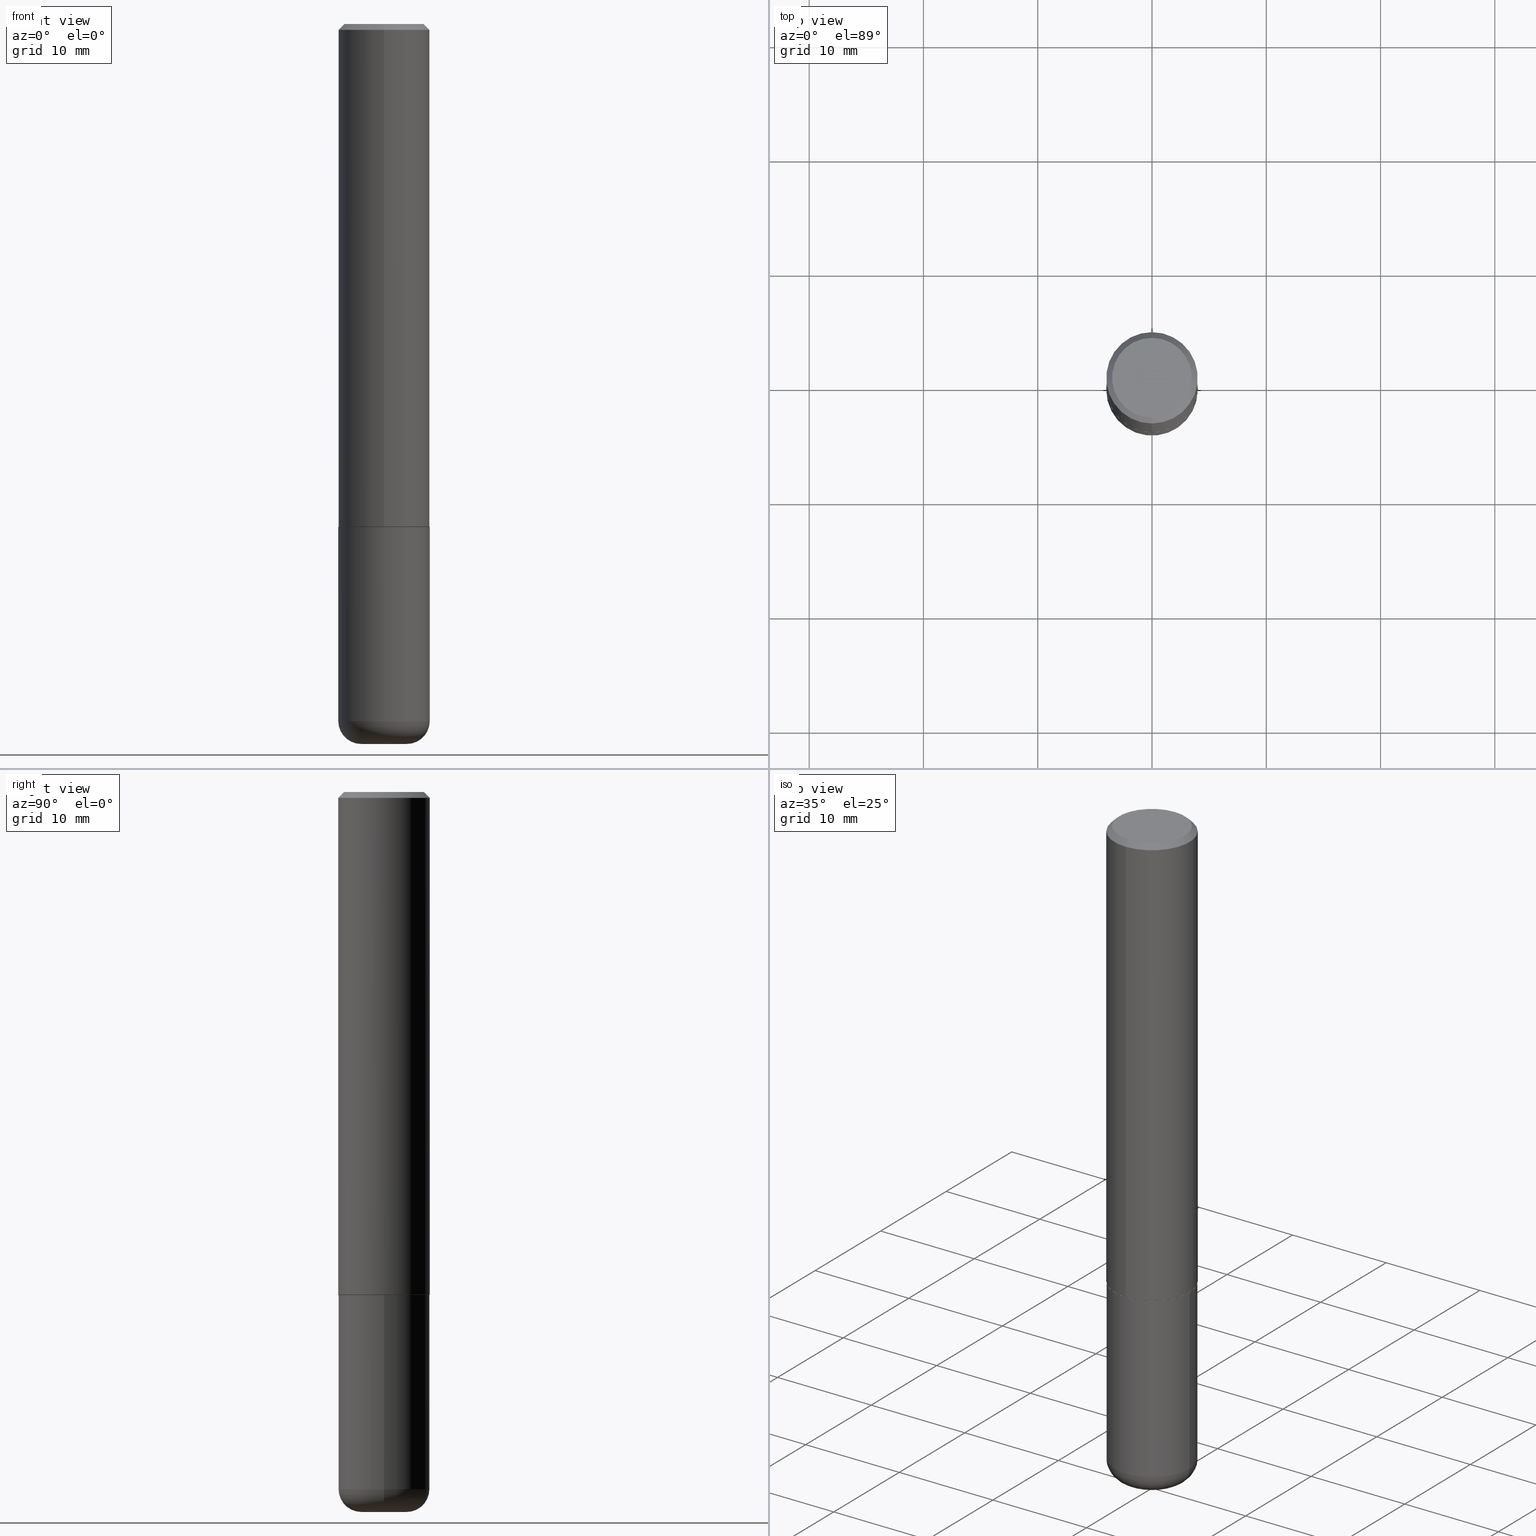
[diagram: canonical four-view strip — front | top / right | iso, engineering-drawing reading convention]
A machine part, canonical four-view strip (front | top / right | iso — engineering-drawing reading convention). The complete STEP part file that produces these views, byte-faithful:
ISO-10303-21;
HEADER;
FILE_DESCRIPTION (( 'STEP AP203' ),
    '1' );
FILE_NAME ('46887.STEP',
    '2024-03-05T05:59:41',
    ( '' ),
    ( '' ),
    'SwSTEP 2.0',
    'SolidWorks 2023',
    '' );
FILE_SCHEMA (( 'CONFIG_CONTROL_DESIGN' ));
ENDSEC;

DATA;
#1 = DIRECTION ( 'NONE',  ( 2.438088387897960049E-29, -3.491481338843145188E-15, -1.000000000000000000 ) ) ;
#2 = EDGE_LOOP ( 'NONE', ( #159, #112, #60, #26 ) ) ;
#3 = AXIS2_PLACEMENT_3D ( 'NONE', #50, #243, #301 ) ;
#4 = DIRECTION ( 'NONE',  ( 1.000000000000000000, -6.982962677686261977E-15, 0.000000000000000000 ) ) ;
#5 = DIRECTION ( 'NONE',  ( -2.446510153727324005E-29, 3.489990069892911860E-15, 1.000000000000000000 ) ) ;
#6 = EDGE_LOOP ( 'NONE', ( #38, #191, #130, #256 ) ) ;
#7 = DIRECTION ( 'NONE',  ( 5.024295867788404755E-15, 0.7071067811865981989, 0.7071067811864968355 ) ) ;
#8 = ORIENTED_EDGE ( 'NONE', *, *, #78, .F. ) ;
#9 = DATE_AND_TIME ( #326, #383 ) ;
#10 = LINE ( 'NONE', #398, #116 ) ;
#11 = CIRCLE ( 'NONE', #249, 0.1574999999999999456 ) ;
#12 = VERTEX_POINT ( 'NONE', #367 ) ;
#13 = CARTESIAN_POINT ( 'NONE',  ( 4.238089539301844751E-29, -6.045709798075491994E-15, -1.732300000000000173 ) ) ;
#14 = DIRECTION ( 'NONE',  ( 1.000000000000000000, -6.982962677686263555E-15, 4.883557194083111780E-29 ) ) ;
#15 = CC_DESIGN_PERSON_AND_ORGANIZATION_ASSIGNMENT ( #400, #238, ( #351 ) ) ;
#16 = DIRECTION ( 'NONE',  ( -2.446510153727324005E-29, 3.489990069892911860E-15, 1.000000000000000000 ) ) ;
#17 = DIRECTION ( 'NONE',  ( -2.446510153727324005E-29, 3.489990069892911860E-15, 1.000000000000000000 ) ) ;
#18 = DIRECTION ( 'NONE',  ( 1.000000000000000000, -6.982962677686265922E-15, 4.876176775795935232E-29 ) ) ;
#19 = CARTESIAN_POINT ( 'NONE',  ( -0.07879999999999999505, -7.825233907586740028E-15, -2.401600000000000623 ) ) ;
#20 = CIRCLE ( 'NONE', #194, 0.1575000000000000011 ) ;
#21 = CARTESIAN_POINT ( 'NONE',  ( 6.065496279980994755E-29, -8.659921164732655335E-15, -2.480300000000000171 ) ) ;
#22 = DIRECTION ( 'NONE',  ( -6.982962677686265922E-15, -1.000000000000000000, 3.496114991891766760E-15 ) ) ;
#23 = CYLINDRICAL_SURFACE ( 'NONE', #227, 0.1575000000000000011 ) ;
#24 = AXIS2_PLACEMENT_3D ( 'NONE', #187, #411, #251 ) ;
#25 = CC_DESIGN_APPROVAL ( #111, ( #351 ) ) ;
#26 = ORIENTED_EDGE ( 'NONE', *, *, #85, .F. ) ;
#27 = ORIENTED_EDGE ( 'NONE', *, *, #308, .F. ) ;
#28 = LINE ( 'NONE', #161, #344 ) ;
#29 = CIRCLE ( 'NONE', #339, 0.1575000000000000011 ) ;
#30 = AXIS2_PLACEMENT_3D ( 'NONE', #399, #209, #14 ) ;
#31 = LINE ( 'NONE', #198, #188 ) ;
#32 = ORIENTED_EDGE ( 'NONE', *, *, #213, .F. ) ;
#33 = PLANE ( 'NONE',  #66 ) ;
#34 = ORIENTED_EDGE ( 'NONE', *, *, #252, .F. ) ;
#35 = EDGE_LOOP ( 'NONE', ( #274, #47, #151, #310 ) ) ;
#36 = CIRCLE ( 'NONE', #291, 0.1565000000000000002 ) ;
#37 = LOCAL_TIME ( 0, 59, 40.00000000000000000, #237 ) ;
#38 = ORIENTED_EDGE ( 'NONE', *, *, #213, .T. ) ;
#39 = PERSON_AND_ORGANIZATION ( #176, #362 ) ;
#40 = ADVANCED_FACE ( 'NONE', ( #378 ), #23, .T. ) ;
#41 = CARTESIAN_POINT ( 'NONE',  ( 1.111999381464598997E-15, 0.1564999999999939495, -1.732300000000000839 ) ) ;
#42 = COORDINATED_UNIVERSAL_TIME_OFFSET ( 5, 0, .BEHIND. ) ;
#43 = DIRECTION ( 'NONE',  ( -2.445468806185136877E-29, 3.491481338843145188E-15, 1.000000000000000000 ) ) ;
#44 = LENGTH_MEASURE_WITH_UNIT ( LENGTH_MEASURE( 0.02539999999999999897 ), #177 );
#45 = AXIS2_PLACEMENT_3D ( 'NONE', #242, #232, #333 ) ;
#46 = AXIS2_PLACEMENT_3D ( 'NONE', #221, #153, #131 ) ;
#47 = ORIENTED_EDGE ( 'NONE', *, *, #388, .T. ) ;
#48 = APPROVAL_STATUS ( 'not_yet_approved' ) ;
#49 = DIRECTION ( 'NONE',  ( 1.000000000000000000, -6.982962677686277755E-15, 0.000000000000000000 ) ) ;
#50 = CARTESIAN_POINT ( 'NONE',  ( 4.235643029148117026E-29, -6.042219808005598538E-15, -1.731300000000000283 ) ) ;
#51 = DIRECTION ( 'NONE',  ( 1.000000000000000000, -6.982962677686261977E-15, 0.000000000000000000 ) ) ;
#52 = PERSON_AND_ORGANIZATION_ROLE ( 'classification_officer' ) ;
#53 = DIRECTION ( 'NONE',  ( -6.982962677686265922E-15, -1.000000000000000000, 3.491179544618866730E-15 ) ) ;
#54 =( NAMED_UNIT ( * ) SI_UNIT ( $, .STERADIAN. ) SOLID_ANGLE_UNIT ( ) );
#55 = PLANE ( 'NONE',  #365 ) ;
#56 = APPROVAL_ROLE ( '' ) ;
#57 = AXIS2_PLACEMENT_3D ( 'NONE', #376, #16, #96 ) ;
#58 = AXIS2_PLACEMENT_3D ( 'NONE', #148, #277, #215 ) ;
#59 = CARTESIAN_POINT ( 'NONE',  ( 4.238089539301844751E-29, -6.045709798075491994E-15, -1.732300000000000173 ) ) ;
#60 = ORIENTED_EDGE ( 'NONE', *, *, #358, .T. ) ;
#61 = CALENDAR_DATE ( 2024, 5, 3 ) ;
#62 = DESIGN_CONTEXT ( 'detailed design', #225, 'design' ) ;
#63 = SHAPE_DEFINITION_REPRESENTATION ( #231, #397 ) ;
#64 = AXIS2_PLACEMENT_3D ( 'NONE', #297, #276, #324 ) ;
#65 = EDGE_CURVE ( 'NONE', #228, #317, #321, .T. ) ;
#66 = AXIS2_PLACEMENT_3D ( 'NONE', #287, #1, #229 ) ;
#67 = EDGE_LOOP ( 'NONE', ( #34, #105, #165, #284 ) ) ;
#68 = VERTEX_POINT ( 'NONE', #245 ) ;
#69 = DIRECTION ( 'NONE',  ( -2.446510153727324005E-29, 3.489990069892911860E-15, 1.000000000000000000 ) ) ;
#70 = VECTOR ( 'NONE', #364, 39.37007874015748143 ) ;
#71 = FACE_OUTER_BOUND ( 'NONE', #259, .T. ) ;
#72 = CC_DESIGN_APPROVAL ( #327, ( #250 ) ) ;
#73 = CARTESIAN_POINT ( 'NONE',  ( 4.238089539301843630E-29, -6.045709798075491205E-15, -1.732299999999999951 ) ) ;
#74 = EDGE_CURVE ( 'NONE', #317, #355, #304, .T. ) ;
#75 = EDGE_LOOP ( 'NONE', ( #319, #220, #323, #414 ) ) ;
#76 = DIRECTION ( 'NONE',  ( -2.445468806185136597E-29, 3.491481338843145583E-15, 1.000000000000000000 ) ) ;
#77 = ORIENTED_EDGE ( 'NONE', *, *, #121, .T. ) ;
#78 = EDGE_CURVE ( 'NONE', #12, #257, #29, .T. ) ;
#79 = EDGE_LOOP ( 'NONE', ( #267, #133 ) ) ;
#80 = CLOSED_SHELL ( 'NONE', ( #416, #418, #413, #40, #196, #164 ) ) ;
#81 = DIRECTION ( 'NONE',  ( -2.445468806185136597E-29, 3.491481338843145583E-15, 1.000000000000000000 ) ) ;
#82 = CARTESIAN_POINT ( 'NONE',  ( 1.099816621735586889E-15, 0.1574999999999998901, -0.02000000000000058328 ) ) ;
#83 = ORIENTED_EDGE ( 'NONE', *, *, #210, .F. ) ;
#84 = EDGE_LOOP ( 'NONE', ( #293, #100, #313, #166 ) ) ;
#85 = EDGE_CURVE ( 'NONE', #360, #68, #126, .T. ) ;
#86 = DIRECTION ( 'NONE',  ( -4.937700262164884886E-15, -0.7071067811865933139, 0.7071067811865017205 ) ) ;
#87 = COORDINATED_UNIVERSAL_TIME_OFFSET ( 5, 0, .BEHIND. ) ;
#88 = CC_DESIGN_SECURITY_CLASSIFICATION ( #250, ( #354 ) ) ;
#89 = EDGE_CURVE ( 'NONE', #289, #331, #234, .T. ) ;
#90 = DIRECTION ( 'NONE',  ( -2.446510153727324005E-29, 3.489990069892911860E-15, 1.000000000000000000 ) ) ;
#91 = DIRECTION ( 'NONE',  ( -6.982962677686265922E-15, -1.000000000000000000, 3.489990069892911466E-15 ) ) ;
#92 = ORIENTED_EDGE ( 'NONE', *, *, #85, .T. ) ;
#93 = DIRECTION ( 'NONE',  ( -1.000000000000000000, 7.105427357600995548E-15, 0.000000000000000000 ) ) ;
#94 = AXIS2_PLACEMENT_3D ( 'NONE', #59, #334, #219 ) ;
#95 = LOCAL_TIME ( 0, 59, 40.00000000000000000, #350 ) ;
#96 = DIRECTION ( 'NONE',  ( -6.982962677686265922E-15, -1.000000000000000000, 3.491179544618866730E-15 ) ) ;
#97 = EDGE_CURVE ( 'NONE', #289, #68, #128, .T. ) ;
#98 = DIRECTION ( 'NONE',  ( -4.851104656540957964E-15, -0.7071067811865491270, -0.7071067811865459074 ) ) ;
#99 = ADVANCED_FACE ( 'NONE', ( #117 ), #387, .T. ) ;
#100 = ORIENTED_EDGE ( 'NONE', *, *, #330, .T. ) ;
#101 = APPROVAL ( #223, 'UNSPECIFIED' ) ;
#102 = CARTESIAN_POINT ( 'NONE',  ( 0.1574999999999999456, -9.484958205101285532E-15, -2.401600000000000623 ) ) ;
#103 = DIRECTION ( 'NONE',  ( 4.937700262164541731E-15, 0.7071067811865442421, -0.7071067811865507924 ) ) ;
#104 = AXIS2_PLACEMENT_3D ( 'NONE', #181, #81, #49 ) ;
#105 = ORIENTED_EDGE ( 'NONE', *, *, #205, .T. ) ;
#106 = CYLINDRICAL_SURFACE ( 'NONE', #299, 0.1575000000000000011 ) ;
#107 = DIRECTION ( 'NONE',  ( -6.982962677686265922E-15, -1.000000000000000000, 3.489990069892911860E-15 ) ) ;
#108 = ORIENTED_EDGE ( 'NONE', *, *, #89, .T. ) ;
#109 = DIRECTION ( 'NONE',  ( -6.982962677686265922E-15, -1.000000000000000000, 3.491179544618866730E-15 ) ) ;
#110 = CARTESIAN_POINT ( 'NONE',  ( -1.099816621735587480E-15, -0.1575000000000000844, 5.496734360081339532E-16 ) ) ;
#111 = APPROVAL ( #329, 'UNSPECIFIED' ) ;
#112 = ORIENTED_EDGE ( 'NONE', *, *, #341, .T. ) ;
#113 = DATE_TIME_ROLE ( 'classification_date' ) ;
#114 = CARTESIAN_POINT ( 'NONE',  ( -0.1575000000000000011, -6.097612544499682750E-15, -1.732300000000000173 ) ) ;
#115 = CC_DESIGN_DATE_AND_TIME_ASSIGNMENT ( #9, #113, ( #250 ) ) ;
#116 = VECTOR ( 'NONE', #43, 39.37007874015748143 ) ;
#117 = FACE_OUTER_BOUND ( 'NONE', #67, .T. ) ;
#118 = CARTESIAN_POINT ( 'NONE',  ( 5.873037884934225470E-29, -8.385141583365698841E-15, -2.401600000000000623 ) ) ;
#119 = APPROVAL_DATE_TIME ( #146, #327 ) ;
#120 = APPLICATION_PROTOCOL_DEFINITION ( 'international standard', 'config_control_design', 1994, #225 ) ;
#121 = EDGE_CURVE ( 'NONE', #390, #385, #410, .T. ) ;
#122 = DIRECTION ( 'NONE',  ( -1.000000000000000000, 6.982962677686265922E-15, -4.876176775795935793E-29 ) ) ;
#123 = DIRECTION ( 'NONE',  ( -2.445468806185136597E-29, 3.491481338843145583E-15, 1.000000000000000000 ) ) ;
#124 = DIRECTION ( 'NONE',  ( 1.000000000000000000, -6.982962677686268288E-15, 0.000000000000000000 ) ) ;
#125 = CIRCLE ( 'NONE', #171, 0.1375000000000000389 ) ;
#126 = CIRCLE ( 'NONE', #405, 0.1574999999999999456 ) ;
#127 = LOCAL_TIME ( 0, 59, 40.00000000000000000, #87 ) ;
#128 = LINE ( 'NONE', #152, #265 ) ;
#129 = EDGE_CURVE ( 'NONE', #254, #338, #298, .T. ) ;
#130 = ORIENTED_EDGE ( 'NONE', *, *, #346, .F. ) ;
#131 = DIRECTION ( 'NONE',  ( 6.982962677686265922E-15, 1.000000000000000000, -3.496114991891766760E-15 ) ) ;
#132 = AXIS2_PLACEMENT_3D ( 'NONE', #167, #384, #4 ) ;
#133 = ORIENTED_EDGE ( 'NONE', *, *, #205, .F. ) ;
#134 = MANIFOLD_SOLID_BREP ( 'Body-Move/Copy2[1]', #80 ) ;
#135 = DIRECTION ( 'NONE',  ( 2.446510153727323724E-29, -3.489990069892911860E-15, -1.000000000000000000 ) ) ;
#136 = ORIENTED_EDGE ( 'NONE', *, *, #308, .T. ) ;
#137 = MANIFOLD_SOLID_BREP ( 'Body-Move/Copy2[2]', #193 ) ;
#138 = AXIS2_PLACEMENT_3D ( 'NONE', #19, #145, #93 ) ;
#139 = LOCAL_TIME ( 0, 59, 40.00000000000000000, #42 ) ;
#140 = PERSON_AND_ORGANIZATION ( #176, #362 ) ;
#141 = DIRECTION ( 'NONE',  ( -2.446510153727324005E-29, 3.489990069892911860E-15, 1.000000000000000000 ) ) ;
#142 = CARTESIAN_POINT ( 'NONE',  ( 4.893020307454656557E-31, -6.979980139785835060E-17, -0.02000000000000003511 ) ) ;
#143 = DATE_AND_TIME ( #356, #95 ) ;
#144 =( CONVERSION_BASED_UNIT ( 'INCH', #44 ) LENGTH_UNIT ( ) NAMED_UNIT ( #342 ) );
#145 = DIRECTION ( 'NONE',  ( 7.105427357601001859E-15, 1.000000000000000000, -3.491481338843145583E-15 ) ) ;
#146 = DATE_AND_TIME ( #302, #139 ) ;
#147 = FACE_OUTER_BOUND ( 'NONE', #200, .T. ) ;
#148 = CARTESIAN_POINT ( 'NONE',  ( 0.000000000000000000, 0.000000000000000000, 0.000000000000000000 ) ) ;
#149 = EDGE_CURVE ( 'NONE', #228, #379, #314, .T. ) ;
#150 = AXIS2_PLACEMENT_3D ( 'NONE', #248, #312, #124 ) ;
#151 = ORIENTED_EDGE ( 'NONE', *, *, #157, .F. ) ;
#152 = CARTESIAN_POINT ( 'NONE',  ( -1.080528434649015385E-15, -0.1575000000000000289, -0.01999999999999948347 ) ) ;
#153 = DIRECTION ( 'NONE',  ( 2.446510153727324005E-29, -3.489990069892911860E-15, -1.000000000000000000 ) ) ;
#154 = CC_DESIGN_PERSON_AND_ORGANIZATION_ASSIGNMENT ( #368, #169, ( #354 ) ) ;
#155 = DIRECTION ( 'NONE',  ( 1.000000000000000000, -6.982962677686277755E-15, 0.000000000000000000 ) ) ;
#156 = AXIS2_PLACEMENT_3D ( 'NONE', #201, #402, #170 ) ;
#157 = EDGE_CURVE ( 'NONE', #68, #360, #11, .T. ) ;
#158 = ORIENTED_EDGE ( 'NONE', *, *, #268, .F. ) ;
#159 = ORIENTED_EDGE ( 'NONE', *, *, #388, .F. ) ;
#160 = DATE_TIME_ROLE ( 'creation_date' ) ;
#161 = CARTESIAN_POINT ( 'NONE',  ( 1.099816621735586889E-15, 0.1574999999999998901, -0.02000000000000058328 ) ) ;
#162 = VECTOR ( 'NONE', #233, 39.37007874015748143 ) ;
#163 = CARTESIAN_POINT ( 'NONE',  ( -1.092833659057858276E-15, -0.1565000000000060232, -1.732299999999999729 ) ) ;
#164 = ADVANCED_FACE ( 'NONE', ( #336 ), #55, .T. ) ;
#165 = ORIENTED_EDGE ( 'NONE', *, *, #210, .T. ) ;
#166 = ORIENTED_EDGE ( 'NONE', *, *, #294, .F. ) ;
#167 = CARTESIAN_POINT ( 'NONE',  ( 5.873037884934225470E-29, -8.385141583365698841E-15, -2.401600000000000623 ) ) ;
#168 = TOROIDAL_SURFACE ( 'NONE', #30, 0.07879999999999999505, 0.07869999999999995055 ) ;
#169 = PERSON_AND_ORGANIZATION_ROLE ( 'creator' ) ;
#170 = DIRECTION ( 'NONE',  ( -6.982962677686265922E-15, -1.000000000000000000, 3.489990069892912254E-15 ) ) ;
#171 = AXIS2_PLACEMENT_3D ( 'NONE', #216, #281, #91 ) ;
#172 = AXIS2_PLACEMENT_3D ( 'NONE', #348, #69, #359 ) ;
#173 = APPROVAL_DATE_TIME ( #296, #111 ) ;
#174 = CC_DESIGN_PERSON_AND_ORGANIZATION_ASSIGNMENT ( #337, #204, ( #260 ) ) ;
#175 = ORIENTED_EDGE ( 'NONE', *, *, #294, .T. ) ;
#176 = PERSON ( 'UNSPECIFIED', 'UNSPECIFIED', 'UNSPECIFIED', ('UNSPECIFIED'), ('UNSPECIFIED'), ('UNSPECIFIED') ) ;
#177 =( LENGTH_UNIT ( ) NAMED_UNIT ( * ) SI_UNIT ( $, .METRE. ) );
#178 = CC_DESIGN_PERSON_AND_ORGANIZATION_ASSIGNMENT ( #39, #235, ( #354 ) ) ;
#179 = CARTESIAN_POINT ( 'NONE',  ( 1.029986994958724379E-15, 0.1375000000000000389, -5.398378589523384863E-16 ) ) ;
#180 = APPROVAL_ROLE ( '' ) ;
#181 = CARTESIAN_POINT ( 'NONE',  ( 6.065496279980994755E-29, -8.659921164732655335E-15, -2.480300000000000171 ) ) ;
#182 = DIRECTION ( 'NONE',  ( -6.982962677686265922E-15, -1.000000000000000000, 3.496114991891766760E-15 ) ) ;
#183 = CIRCLE ( 'NONE', #150, 0.1575000000000000011 ) ;
#184 = DIRECTION ( 'NONE',  ( 1.000000000000000000, -6.982962677686265922E-15, 4.876176775795935232E-29 ) ) ;
#185 = CARTESIAN_POINT ( 'NONE',  ( 0.07879999999999999505, -8.935399042367378854E-15, -2.401600000000000623 ) ) ;
#186 = EDGE_CURVE ( 'NONE', #331, #289, #125, .T. ) ;
#187 = CARTESIAN_POINT ( 'NONE',  ( 1.467030837132400843E-45, -2.092745475026303741E-31, -5.996422434206290832E-17 ) ) ;
#188 = VECTOR ( 'NONE', #261, 39.37007874015748143 ) ;
#189 = ORIENTED_EDGE ( 'NONE', *, *, #346, .T. ) ;
#190 = PERSON_AND_ORGANIZATION ( #176, #362 ) ;
#191 = ORIENTED_EDGE ( 'NONE', *, *, #149, .T. ) ;
#192 = CARTESIAN_POINT ( 'NONE',  ( 9.601573681818618699E-16, 0.1375000000000000389, -5.098557467813069335E-16 ) ) ;
#193 = CLOSED_SHELL ( 'NONE', ( #282, #370, #288, #239, #222, #99, #404, #373 ) ) ;
#194 = AXIS2_PLACEMENT_3D ( 'NONE', #118, #417, #51 ) ;
#195 = CARTESIAN_POINT ( 'NONE',  ( 4.238089539301844751E-29, -6.045709798075491994E-15, -1.732300000000000173 ) ) ;
#196 = ADVANCED_FACE ( 'NONE', ( #212 ), #352, .T. ) ;
#197 = DATE_AND_TIME ( #61, #127 ) ;
#198 = CARTESIAN_POINT ( 'NONE',  ( 1.119104808822158195E-15, 0.1575000000000000844, -5.496734360081339532E-16 ) ) ;
#199 = AXIS2_PLACEMENT_3D ( 'NONE', #406, #211, #155 ) ;
#200 = EDGE_LOOP ( 'NONE', ( #401, #345, #136, #92 ) ) ;
#201 = CARTESIAN_POINT ( 'NONE',  ( 0.000000000000000000, 0.000000000000000000, 0.000000000000000000 ) ) ;
#202 = PERSON_AND_ORGANIZATION ( #176, #362 ) ;
#203 = EDGE_LOOP ( 'NONE', ( #286, #175 ) ) ;
#204 = PERSON_AND_ORGANIZATION_ROLE ( 'design_owner' ) ;
#205 = EDGE_CURVE ( 'NONE', #385, #390, #36, .T. ) ;
#206 = VECTOR ( 'NONE', #86, 39.37007874015748143 ) ;
#207 = SECURITY_CLASSIFICATION_LEVEL ( 'unclassified' ) ;
#208 = CIRCLE ( 'NONE', #132, 0.1575000000000000011 ) ;
#209 = DIRECTION ( 'NONE',  ( -2.445468806185136597E-29, 3.491481338843145583E-15, 1.000000000000000000 ) ) ;
#210 = EDGE_CURVE ( 'NONE', #390, #254, #272, .T. ) ;
#211 = DIRECTION ( 'NONE',  ( -2.445468806185136597E-29, 3.491481338843145583E-15, 1.000000000000000000 ) ) ;
#212 = FACE_OUTER_BOUND ( 'NONE', #75, .T. ) ;
#213 = EDGE_CURVE ( 'NONE', #317, #228, #279, .T. ) ;
#214 = DIRECTION ( 'NONE',  ( -2.446510153727324005E-29, 3.489990069892911860E-15, 1.000000000000000000 ) ) ;
#215 = DIRECTION ( 'NONE',  ( 1.000000000000000000, 0.000000000000000000, 0.000000000000000000 ) ) ;
#216 = CARTESIAN_POINT ( 'NONE',  ( 1.467030837132400843E-45, -2.092745475026303741E-31, -5.996422434206290832E-17 ) ) ;
#217 = AXIS2_PLACEMENT_3D ( 'NONE', #192, #135, #353 ) ;
#218 = CARTESIAN_POINT ( 'NONE',  ( 0.000000000000000000, 0.000000000000000000, 0.000000000000000000 ) ) ;
#219 = DIRECTION ( 'NONE',  ( -6.982962677686265922E-15, -1.000000000000000000, 3.491179544618866730E-15 ) ) ;
#220 = ORIENTED_EDGE ( 'NONE', *, *, #65, .T. ) ;
#221 = CARTESIAN_POINT ( 'NONE',  ( 4.893020307454656557E-31, -6.979980139785835060E-17, -0.02000000000000003511 ) ) ;
#222 = ADVANCED_FACE ( 'NONE', ( #300 ), #328, .T. ) ;
#223 = APPROVAL_STATUS ( 'not_yet_approved' ) ;
#224 = FACE_OUTER_BOUND ( 'NONE', #35, .T. ) ;
#226 = PLANE ( 'NONE',  #217 ) ;
#225 = APPLICATION_CONTEXT ( 'configuration controlled 3d designs of mechanical parts and assemblies' ) ;
#227 = AXIS2_PLACEMENT_3D ( 'NONE', #218, #278, #184 ) ;
#228 = VERTEX_POINT ( 'NONE', #303 ) ;
#229 = DIRECTION ( 'NONE',  ( -1.000000000000000000, 6.982962677686265922E-15, -4.876176775795935793E-29 ) ) ;
#230 = EDGE_CURVE ( 'NONE', #379, #257, #295, .T. ) ;
#231 = PRODUCT_DEFINITION_SHAPE ( 'NONE', 'NONE',  #351 ) ;
#232 = DIRECTION ( 'NONE',  ( -2.445468806185136597E-29, 3.491481338843145583E-15, 1.000000000000000000 ) ) ;
#233 = DIRECTION ( 'NONE',  ( -2.446510153727324285E-29, 3.489990069892911860E-15, 1.000000000000000000 ) ) ;
#234 = CIRCLE ( 'NONE', #24, 0.1375000000000000389 ) ;
#235 = PERSON_AND_ORGANIZATION_ROLE ( 'design_supplier' ) ;
#236 = CARTESIAN_POINT ( 'NONE',  ( -0.1575000000000000011, 1.119104808822157801E-15, -7.747322767151475583E-30 ) ) ;
#237 = COORDINATED_UNIVERSAL_TIME_OFFSET ( 5, 0, .BEHIND. ) ;
#238 = PERSON_AND_ORGANIZATION_ROLE ( 'creator' ) ;
#239 = ADVANCED_FACE ( 'NONE', ( #147 ), #240, .T. ) ;
#240 = CONICAL_SURFACE ( 'NONE', #64, 0.1574999999999999456, 0.7853981633974471688 ) ;
#241 =( GEOMETRIC_REPRESENTATION_CONTEXT ( 3 ) GLOBAL_UNCERTAINTY_ASSIGNED_CONTEXT ( ( #415 ) ) GLOBAL_UNIT_ASSIGNED_CONTEXT ( ( #144, #273, #54 ) ) REPRESENTATION_CONTEXT ( 'NONE', 'WORKASPACE' ) );
#242 = CARTESIAN_POINT ( 'NONE',  ( 5.873037884934225470E-29, -8.385141583365698841E-15, -2.401600000000000623 ) ) ;
#243 = DIRECTION ( 'NONE',  ( -2.446510153727324005E-29, 3.489990069892911860E-15, 1.000000000000000000 ) ) ;
#244 = APPLICATION_PROTOCOL_DEFINITION ( 'international standard', 'config_control_design', 1994, #409 ) ;
#245 = CARTESIAN_POINT ( 'NONE',  ( -1.080528434649015385E-15, -0.1575000000000000289, -0.01999999999999948347 ) ) ;
#246 = FACE_OUTER_BOUND ( 'NONE', #270, .T. ) ;
#247 = DIRECTION ( 'NONE',  ( 1.000000000000000000, -6.982962677686268288E-15, 0.000000000000000000 ) ) ;
#248 = CARTESIAN_POINT ( 'NONE',  ( 4.236285612954512953E-29, -6.048293123277982656E-15, -1.732300000000000173 ) ) ;
#249 = AXIS2_PLACEMENT_3D ( 'NONE', #371, #214, #182 ) ;
#250 = SECURITY_CLASSIFICATION ( '', '', #207 ) ;
#251 = DIRECTION ( 'NONE',  ( -6.982962677686265922E-15, -1.000000000000000000, 3.489990069892911466E-15 ) ) ;
#252 = EDGE_CURVE ( 'NONE', #385, #338, #264, .T. ) ;
#253 = EDGE_LOOP ( 'NONE', ( #32, #374 ) ) ;
#254 = VERTEX_POINT ( 'NONE', #396 ) ;
#255 = CARTESIAN_POINT ( 'NONE',  ( 4.235643029148117026E-29, -6.042219808005598538E-15, -1.731300000000000283 ) ) ;
#256 = ORIENTED_EDGE ( 'NONE', *, *, #74, .F. ) ;
#257 = VERTEX_POINT ( 'NONE', #114 ) ;
#258 = CARTESIAN_POINT ( 'NONE',  ( 1.115552095143400092E-15, 0.1564999999999939495, -1.732300000000000839 ) ) ;
#259 = EDGE_LOOP ( 'NONE', ( #77, #343, #263, #83 ) ) ;
#260 = PRODUCT ( '46887', '46887', '', ( #369 ) ) ;
#261 = DIRECTION ( 'NONE',  ( -2.446510153727324285E-29, 3.489990069892911860E-15, 1.000000000000000000 ) ) ;
#262 = EDGE_LOOP ( 'NONE', ( #189, #349, #8, #158 ) ) ;
#263 = ORIENTED_EDGE ( 'NONE', *, *, #129, .F. ) ;
#264 = LINE ( 'NONE', #41, #309 ) ;
#265 = VECTOR ( 'NONE', #98, 39.37007874015748143 ) ;
#266 = CONICAL_SURFACE ( 'NONE', #46, 0.1574999999999999456, 0.7853981633974471688 ) ;
#267 = ORIENTED_EDGE ( 'NONE', *, *, #121, .F. ) ;
#268 = EDGE_CURVE ( 'NONE', #355, #12, #10, .T. ) ;
#269 = CARTESIAN_POINT ( 'NONE',  ( -1.092833659057858276E-15, -0.1565000000000060232, -1.732299999999999729 ) ) ;
#270 = EDGE_LOOP ( 'NONE', ( #382, #392, #311, #27 ) ) ;
#271 = APPROVAL_DATE_TIME ( #143, #101 ) ;
#272 = LINE ( 'NONE', #269, #206 ) ;
#273 =( NAMED_UNIT ( * ) PLANE_ANGLE_UNIT ( ) SI_UNIT ( $, .RADIAN. ) );
#274 = ORIENTED_EDGE ( 'NONE', *, *, #129, .T. ) ;
#275 = CONICAL_SURFACE ( 'NONE', #381, 0.1565000000000000002, 0.7853981633975165577 ) ;
#276 = DIRECTION ( 'NONE',  ( 2.446510153727324005E-29, -3.489990069892911860E-15, -1.000000000000000000 ) ) ;
#277 = DIRECTION ( 'NONE',  ( 0.000000000000000000, 0.000000000000000000, 1.000000000000000000 ) ) ;
#278 = DIRECTION ( 'NONE',  ( -2.445468806185136597E-29, 3.491481338843145583E-15, 1.000000000000000000 ) ) ;
#279 = CIRCLE ( 'NONE', #104, 0.07880000000000000893 ) ;
#280 = CIRCLE ( 'NONE', #366, 0.1575000000000001954 ) ;
#281 = DIRECTION ( 'NONE',  ( -2.446510153727324005E-29, 3.489990069892911860E-15, 1.000000000000000000 ) ) ;
#282 = ADVANCED_FACE ( 'NONE', ( #71 ), #275, .T. ) ;
#283 = ORIENTED_EDGE ( 'NONE', *, *, #186, .T. ) ;
#284 = ORIENTED_EDGE ( 'NONE', *, *, #341, .F. ) ;
#285 = FACE_OUTER_BOUND ( 'NONE', #79, .T. ) ;
#286 = ORIENTED_EDGE ( 'NONE', *, *, #78, .T. ) ;
#287 = CARTESIAN_POINT ( 'NONE',  ( 2.138124668964638664E-29, -9.052979014976142494E-15, -1.732299999999999951 ) ) ;
#288 = ADVANCED_FACE ( 'NONE', ( #246 ), #266, .T. ) ;
#289 = VERTEX_POINT ( 'NONE', #375 ) ;
#290 = CYLINDRICAL_SURFACE ( 'NONE', #172, 0.1575000000000000844 ) ;
#291 = AXIS2_PLACEMENT_3D ( 'NONE', #13, #141, #53 ) ;
#292 = APPROVAL_PERSON_ORGANIZATION ( #140, #111, #56 ) ;
#293 = ORIENTED_EDGE ( 'NONE', *, *, #230, .F. ) ;
#294 = EDGE_CURVE ( 'NONE', #257, #12, #183, .T. ) ;
#295 = LINE ( 'NONE', #236, #70 ) ;
#296 = DATE_AND_TIME ( #372, #37 ) ;
#297 = CARTESIAN_POINT ( 'NONE',  ( 4.893020307454656557E-31, -6.979980139785835060E-17, -0.02000000000000003511 ) ) ;
#298 = CIRCLE ( 'NONE', #3, 0.1575000000000001954 ) ;
#299 = AXIS2_PLACEMENT_3D ( 'NONE', #357, #76, #18 ) ;
#300 = FACE_OUTER_BOUND ( 'NONE', #2, .T. ) ;
#301 = DIRECTION ( 'NONE',  ( -6.982962677686265922E-15, -1.000000000000000000, 3.469013325287948955E-15 ) ) ;
#302 = CALENDAR_DATE ( 2024, 5, 3 ) ;
#303 = CARTESIAN_POINT ( 'NONE',  ( -0.07880000000000000893, -7.683025131748618880E-15, -2.480300000000000171 ) ) ;
#304 = CIRCLE ( 'NONE', #361, 0.07869999999999996443 ) ;
#305 = AXIS2_PLACEMENT_3D ( 'NONE', #73, #391, #107 ) ;
#306 = DIRECTION ( 'NONE',  ( 1.000000000000000000, -6.982962677686273021E-15, 0.000000000000000000 ) ) ;
#307 = CARTESIAN_POINT ( 'NONE',  ( 4.236285612954512953E-29, -6.048293123277982656E-15, -1.732300000000000173 ) ) ;
#308 = EDGE_CURVE ( 'NONE', #331, #360, #28, .T. ) ;
#309 = VECTOR ( 'NONE', #7, 39.37007874015748143 ) ;
#310 = ORIENTED_EDGE ( 'NONE', *, *, #358, .F. ) ;
#311 = ORIENTED_EDGE ( 'NONE', *, *, #157, .T. ) ;
#312 = DIRECTION ( 'NONE',  ( -2.445468806185136597E-29, 3.491481338843145583E-15, 1.000000000000000000 ) ) ;
#313 = ORIENTED_EDGE ( 'NONE', *, *, #268, .T. ) ;
#314 = CIRCLE ( 'NONE', #138, 0.07869999999999996443 ) ;
#315 = CARTESIAN_POINT ( 'NONE',  ( -0.1574999999999999456, -7.266036774543542815E-15, -2.401600000000000623 ) ) ;
#316 = FACE_OUTER_BOUND ( 'NONE', #203, .T. ) ;
#317 = VERTEX_POINT ( 'NONE', #377 ) ;
#318 = PLANE ( 'NONE',  #305 ) ;
#319 = ORIENTED_EDGE ( 'NONE', *, *, #149, .F. ) ;
#320 = FACE_OUTER_BOUND ( 'NONE', #395, .T. ) ;
#321 = CIRCLE ( 'NONE', #199, 0.07880000000000000893 ) ;
#322 = CC_DESIGN_APPROVAL ( #101, ( #354 ) ) ;
#323 = ORIENTED_EDGE ( 'NONE', *, *, #74, .T. ) ;
#324 = DIRECTION ( 'NONE',  ( 6.982962677686265922E-15, 1.000000000000000000, -3.496114991891766760E-15 ) ) ;
#325 = DIRECTION ( 'NONE',  ( -6.982962677686265922E-15, -1.000000000000000000, 3.469013325287948955E-15 ) ) ;
#326 = CALENDAR_DATE ( 2024, 5, 3 ) ;
#327 = APPROVAL ( #48, 'UNSPECIFIED' ) ;
#328 = CYLINDRICAL_SURFACE ( 'NONE', #156, 0.1575000000000000844 ) ;
#329 = APPROVAL_STATUS ( 'not_yet_approved' ) ;
#330 = EDGE_CURVE ( 'NONE', #379, #355, #20, .T. ) ;
#331 = VERTEX_POINT ( 'NONE', #179 ) ;
#332 = PERSON_AND_ORGANIZATION ( #176, #362 ) ;
#333 = DIRECTION ( 'NONE',  ( 1.000000000000000000, -6.982962677686263555E-15, 4.883557194083111780E-29 ) ) ;
#334 = DIRECTION ( 'NONE',  ( -2.446510153727324005E-29, 3.489990069892911860E-15, 1.000000000000000000 ) ) ;
#335 = COORDINATED_UNIVERSAL_TIME_OFFSET ( 5, 0, .BEHIND. ) ;
#336 = FACE_OUTER_BOUND ( 'NONE', #253, .T. ) ;
#337 = PERSON_AND_ORGANIZATION ( #176, #362 ) ;
#338 = VERTEX_POINT ( 'NONE', #386 ) ;
#339 = AXIS2_PLACEMENT_3D ( 'NONE', #307, #123, #247 ) ;
#340 = APPROVAL_PERSON_ORGANIZATION ( #190, #101, #347 ) ;
#341 = EDGE_CURVE ( 'NONE', #338, #254, #280, .T. ) ;
#342 = DIMENSIONAL_EXPONENTS ( 1.000000000000000000, 0.000000000000000000, 0.000000000000000000, 0.000000000000000000, 0.000000000000000000, 0.000000000000000000, 0.000000000000000000 ) ;
#343 = ORIENTED_EDGE ( 'NONE', *, *, #252, .T. ) ;
#344 = VECTOR ( 'NONE', #103, 39.37007874015748143 ) ;
#345 = ORIENTED_EDGE ( 'NONE', *, *, #186, .F. ) ;
#346 = EDGE_CURVE ( 'NONE', #355, #379, #208, .T. ) ;
#347 = APPROVAL_ROLE ( '' ) ;
#348 = CARTESIAN_POINT ( 'NONE',  ( 0.000000000000000000, 0.000000000000000000, 0.000000000000000000 ) ) ;
#349 = ORIENTED_EDGE ( 'NONE', *, *, #230, .T. ) ;
#350 = COORDINATED_UNIVERSAL_TIME_OFFSET ( 5, 0, .BEHIND. ) ;
#351 = PRODUCT_DEFINITION ( 'UNKNOWN', '', #354, #62 ) ;
#352 = TOROIDAL_SURFACE ( 'NONE', #45, 0.07879999999999999505, 0.07869999999999995055 ) ;
#353 = DIRECTION ( 'NONE',  ( 6.982962677686265922E-15, 1.000000000000000000, -3.489990069892911860E-15 ) ) ;
#354 = PRODUCT_DEFINITION_FORMATION_WITH_SPECIFIED_SOURCE ( 'ANY', '', #260, .NOT_KNOWN. ) ;
#355 = VERTEX_POINT ( 'NONE', #102 ) ;
#356 = CALENDAR_DATE ( 2024, 5, 3 ) ;
#357 = CARTESIAN_POINT ( 'NONE',  ( 0.000000000000000000, 0.000000000000000000, 0.000000000000000000 ) ) ;
#358 = EDGE_CURVE ( 'NONE', #254, #68, #393, .T. ) ;
#359 = DIRECTION ( 'NONE',  ( -6.982962677686265922E-15, -1.000000000000000000, 3.489990069892912254E-15 ) ) ;
#360 = VERTEX_POINT ( 'NONE', #82 ) ;
#361 = AXIS2_PLACEMENT_3D ( 'NONE', #185, #408, #306 ) ;
#362 = ORGANIZATION ( 'UNSPECIFIED', 'UNSPECIFIED', '' ) ;
#363 = CC_DESIGN_PERSON_AND_ORGANIZATION_ASSIGNMENT ( #202, #52, ( #250 ) ) ;
#364 = DIRECTION ( 'NONE',  ( -2.445468806185136877E-29, 3.491481338843145188E-15, 1.000000000000000000 ) ) ;
#365 = AXIS2_PLACEMENT_3D ( 'NONE', #21, #407, #122 ) ;
#366 = AXIS2_PLACEMENT_3D ( 'NONE', #255, #5, #325 ) ;
#367 = CARTESIAN_POINT ( 'NONE',  ( 0.1575000000000000011, -7.148109745013570136E-15, -1.732300000000000173 ) ) ;
#368 = PERSON_AND_ORGANIZATION ( #176, #362 ) ;
#369 = MECHANICAL_CONTEXT ( 'NONE', #409, 'mechanical' ) ;
#370 = ADVANCED_FACE ( 'NONE', ( #224 ), #290, .T. ) ;
#371 = CARTESIAN_POINT ( 'NONE',  ( 4.893020307454656557E-31, -6.979980139785835060E-17, -0.02000000000000003511 ) ) ;
#372 = CALENDAR_DATE ( 2024, 5, 3 ) ;
#373 = ADVANCED_FACE ( 'NONE', ( #320 ), #226, .F. ) ;
#374 = ORIENTED_EDGE ( 'NONE', *, *, #65, .F. ) ;
#375 = CARTESIAN_POINT ( 'NONE',  ( -1.011923454671300448E-15, -0.1375000000000000389, 4.199094102682127190E-16 ) ) ;
#376 = CARTESIAN_POINT ( 'NONE',  ( 4.238089539301844751E-29, -6.045709798075491994E-15, -1.732300000000000173 ) ) ;
#377 = CARTESIAN_POINT ( 'NONE',  ( 0.07880000000000000893, -9.210178623734333771E-15, -2.480300000000000171 ) ) ;
#378 = FACE_OUTER_BOUND ( 'NONE', #84, .T. ) ;
#379 = VERTEX_POINT ( 'NONE', #315 ) ;
#380 = CC_DESIGN_DATE_AND_TIME_ASSIGNMENT ( #197, #160, ( #351 ) ) ;
#381 = AXIS2_PLACEMENT_3D ( 'NONE', #195, #17, #109 ) ;
#382 = ORIENTED_EDGE ( 'NONE', *, *, #89, .F. ) ;
#383 = LOCAL_TIME ( 0, 59, 40.00000000000000000, #335 ) ;
#384 = DIRECTION ( 'NONE',  ( -2.445468806185136597E-29, 3.491481338843145583E-15, 1.000000000000000000 ) ) ;
#385 = VERTEX_POINT ( 'NONE', #258 ) ;
#386 = CARTESIAN_POINT ( 'NONE',  ( 1.119104808822180283E-15, 0.1574999999999941447, -1.731300000000000727 ) ) ;
#387 = CONICAL_SURFACE ( 'NONE', #57, 0.1565000000000000002, 0.7853981633975165577 ) ;
#388 = EDGE_CURVE ( 'NONE', #338, #360, #31, .T. ) ;
#389 = FACE_OUTER_BOUND ( 'NONE', #262, .T. ) ;
#390 = VERTEX_POINT ( 'NONE', #163 ) ;
#391 = DIRECTION ( 'NONE',  ( -2.446510153727323724E-29, 3.489990069892911860E-15, 1.000000000000000000 ) ) ;
#392 = ORIENTED_EDGE ( 'NONE', *, *, #97, .T. ) ;
#393 = LINE ( 'NONE', #110, #162 ) ;
#394 = PRODUCT_RELATED_PRODUCT_CATEGORY ( 'detail', '', ( #260 ) ) ;
#395 = EDGE_LOOP ( 'NONE', ( #283, #108 ) ) ;
#396 = CARTESIAN_POINT ( 'NONE',  ( -1.099816621735545671E-15, -0.1575000000000062461, -1.731299999999999617 ) ) ;
#397 = ADVANCED_BREP_SHAPE_REPRESENTATION ( '46887', ( #134, #137, #58 ), #241 ) ;
#398 = CARTESIAN_POINT ( 'NONE',  ( 0.1575000000000000011, -1.099816621735586889E-15, 7.679978421878598033E-30 ) ) ;
#399 = CARTESIAN_POINT ( 'NONE',  ( 5.873037884934225470E-29, -8.385141583365698841E-15, -2.401600000000000623 ) ) ;
#400 = PERSON_AND_ORGANIZATION ( #176, #362 ) ;
#401 = ORIENTED_EDGE ( 'NONE', *, *, #97, .F. ) ;
#402 = DIRECTION ( 'NONE',  ( -2.446510153727324005E-29, 3.489990069892911860E-15, 1.000000000000000000 ) ) ;
#403 = FACE_OUTER_BOUND ( 'NONE', #6, .T. ) ;
#404 = ADVANCED_FACE ( 'NONE', ( #285 ), #318, .F. ) ;
#405 = AXIS2_PLACEMENT_3D ( 'NONE', #142, #90, #22 ) ;
#406 = CARTESIAN_POINT ( 'NONE',  ( 6.065496279980994755E-29, -8.659921164732655335E-15, -2.480300000000000171 ) ) ;
#407 = DIRECTION ( 'NONE',  ( 2.438088387897960049E-29, -3.491481338843145188E-15, -1.000000000000000000 ) ) ;
#408 = DIRECTION ( 'NONE',  ( -6.982962677686266711E-15, -1.000000000000000000, 3.491481338843145583E-15 ) ) ;
#409 = APPLICATION_CONTEXT ( 'configuration controlled 3d designs of mechanical parts and assemblies' ) ;
#410 = CIRCLE ( 'NONE', #94, 0.1565000000000000002 ) ;
#411 = DIRECTION ( 'NONE',  ( -2.446510153727324005E-29, 3.489990069892911860E-15, 1.000000000000000000 ) ) ;
#412 = APPROVAL_PERSON_ORGANIZATION ( #332, #327, #180 ) ;
#413 = ADVANCED_FACE ( 'NONE', ( #316 ), #33, .F. ) ;
#414 = ORIENTED_EDGE ( 'NONE', *, *, #330, .F. ) ;
#415 = UNCERTAINTY_MEASURE_WITH_UNIT (LENGTH_MEASURE( 1.000000000000000082E-05 ), #144, 'distance_accuracy_value', 'NONE');
#416 = ADVANCED_FACE ( 'NONE', ( #389 ), #106, .T. ) ;
#417 = DIRECTION ( 'NONE',  ( -2.445468806185136597E-29, 3.491481338843145583E-15, 1.000000000000000000 ) ) ;
#418 = ADVANCED_FACE ( 'NONE', ( #403 ), #168, .T. ) ;
ENDSEC;
END-ISO-10303-21;
